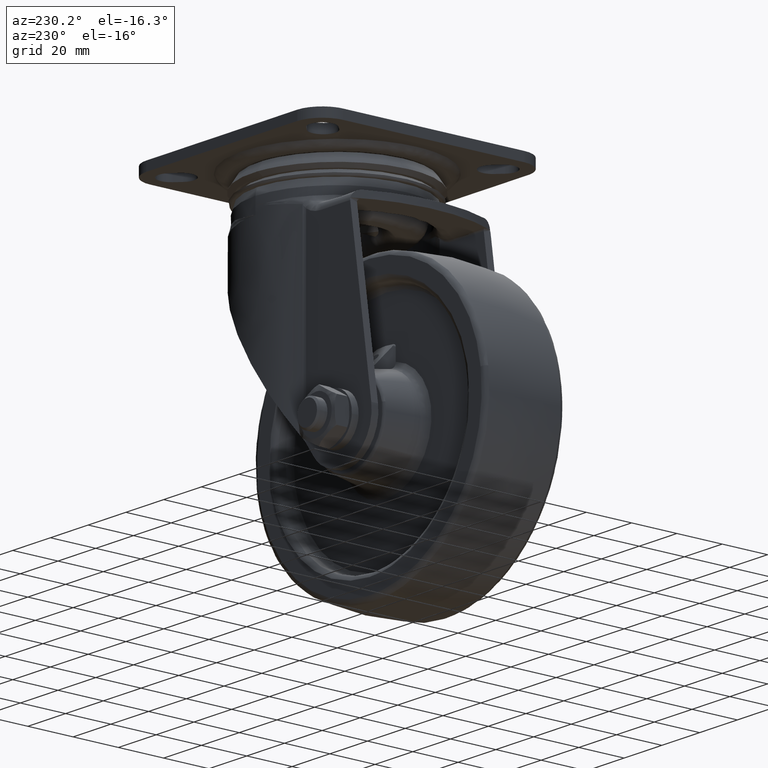
[diagram: clean part render]
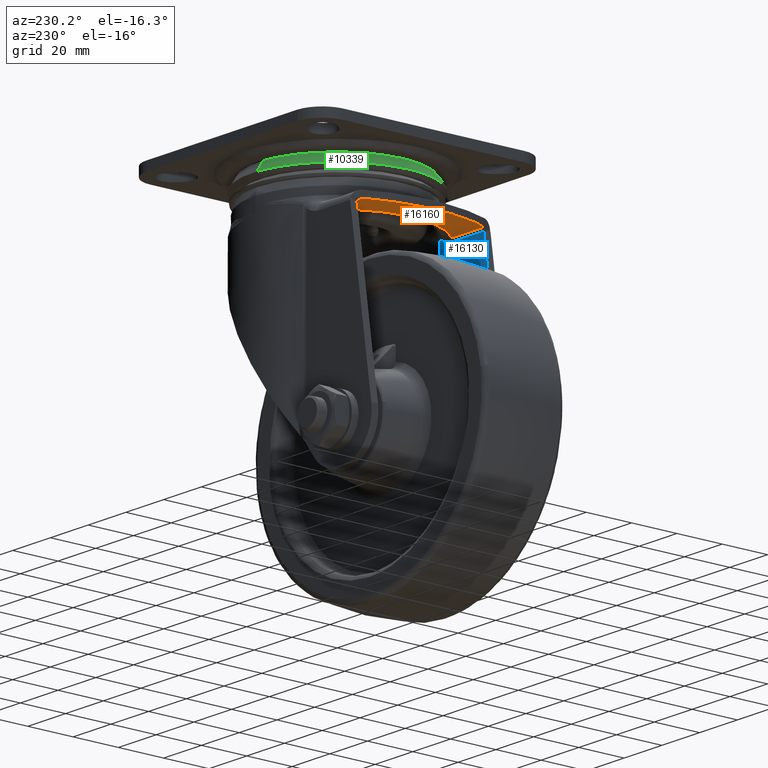
[diagram: same view with three faces highlighted in distinct colors, each labeled with its STEP entity id]
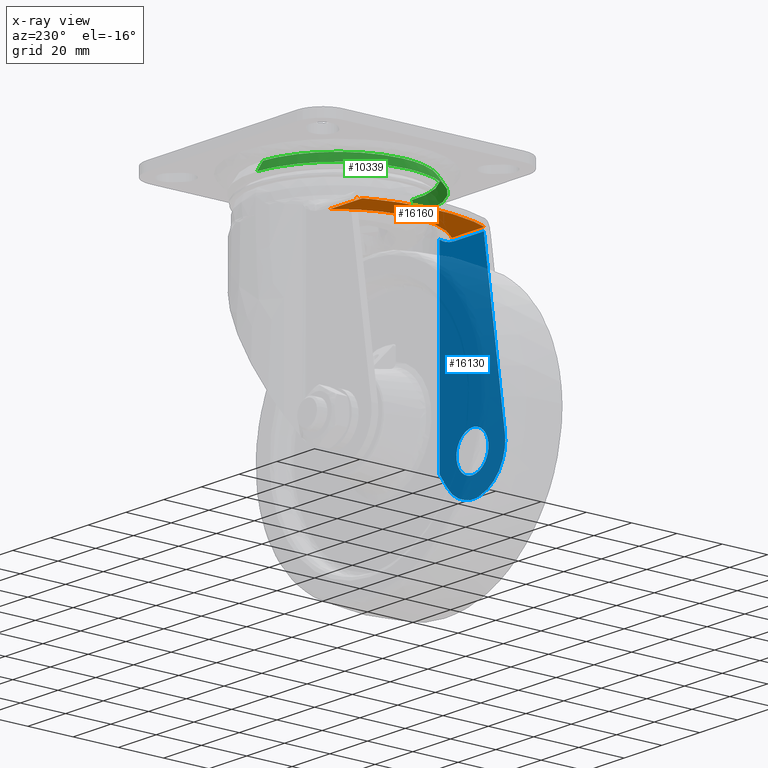
[diagram: x-ray of the same camera — body ghosted, the three highlighted faces saturated]
A machine part, auxiliary view with three faces highlighted in distinct colors.
The next image is the same camera in x-ray (body ghosted, the three faces saturated) — at least one of them is partly hidden behind the body in this view.
Their STEP definitions:

[orange] entity #16160 — the highlighted face is a freeform B-spline surface patch.
#13506=CARTESIAN_POINT('',(-43.937859560606903,30.872983346207349,-28.099989999999998));
#13507=VERTEX_POINT('',#13506);
#13537=CARTESIAN_POINT('',(-43.937859560606903,-30.872983346207349,-28.099989999999998));
#13538=VERTEX_POINT('',#13537);
#13539=CARTESIAN_POINT('',(-43.937859560606910,-30.872983346207381,-28.099989999999998));
#13540=CARTESIAN_POINT('',(-59.194746175725207,-1.734723E-014,-28.099989999999995));
#13541=CARTESIAN_POINT('',(-43.937859560606917,30.872983346207359,-28.099989999999998));
#13549=(BOUNDED_CURVE()B_SPLINE_CURVE(2,(#13539,#13540,#13541),.UNSPECIFIED.,.F.,.U.)CURVE()GEOMETRIC_REPRESENTATION_ITEM()QUASI_UNIFORM_CURVE()RATIONAL_B_SPLINE_CURVE((1.0,0.896503640371240,1.0))REPRESENTATION_ITEM(''));
#13550=EDGE_CURVE('',#13538,#13507,#13549,.T.);
#14224=CARTESIAN_POINT('',(-45.425332899450801,27.0,-28.099989999999998));
#14225=VERTEX_POINT('',#14224);
#14266=CARTESIAN_POINT('',(-28.350002761904658,27.0,-28.099989999999998));
#14267=VERTEX_POINT('',#14266);
#14281=CARTESIAN_POINT('',(-45.425332899450801,27.0,-28.099989999999998));
#14282=CARTESIAN_POINT('',(-28.350002761904658,27.0,-28.099989999999998));
#14283=QUASI_UNIFORM_CURVE('',1,(#14281,#14282),.UNSPECIFIED.,.F.,.U.);
#14284=EDGE_CURVE('',#14225,#14267,#14283,.T.);
#14303=CARTESIAN_POINT('',(-45.425332899450801,-27.0,-28.099989999999998));
#14304=VERTEX_POINT('',#14303);
#14340=CARTESIAN_POINT('',(-28.350002761904658,-27.0,-28.099989999999998));
#14341=VERTEX_POINT('',#14340);
#14342=CARTESIAN_POINT('',(-28.350002761904658,-27.0,-28.099989999999998));
#14343=CARTESIAN_POINT('',(-45.425332899450801,-27.0,-28.099989999999998));
#14344=QUASI_UNIFORM_CURVE('',1,(#14342,#14343),.UNSPECIFIED.,.F.,.U.);
#14345=EDGE_CURVE('',#14341,#14304,#14344,.T.);
#14763=CARTESIAN_POINT('',(-43.924161109737547,-30.872983346207349,-28.099989999999998));
#14764=VERTEX_POINT('',#14763);
#14765=CARTESIAN_POINT('',(-43.924161109737547,-30.872983346207349,-28.099989999999998));
#14766=CARTESIAN_POINT('',(-43.937859560606903,-30.872983346207349,-28.099989999999998));
#14767=QUASI_UNIFORM_CURVE('',1,(#14765,#14766),.UNSPECIFIED.,.F.,.U.);
#14768=EDGE_CURVE('',#14764,#13538,#14767,.T.);
#15109=CARTESIAN_POINT('',(-43.924161109737547,30.872983346207349,-28.099989999999998));
#15110=VERTEX_POINT('',#15109);
#15120=CARTESIAN_POINT('',(-43.937859560606903,30.872983346207349,-28.099989999999998));
#15121=CARTESIAN_POINT('',(-43.924161109737547,30.872983346207349,-28.099989999999998));
#15122=QUASI_UNIFORM_CURVE('',1,(#15120,#15121),.UNSPECIFIED.,.F.,.U.);
#15123=EDGE_CURVE('',#13507,#15110,#15122,.T.);
#15379=CARTESIAN_POINT('',(-44.674747004594153,-28.936491673103681,-28.099989999999998));
#15380=VERTEX_POINT('',#15379);
#15381=CARTESIAN_POINT('',(-44.674747004594138,-28.936491673103681,-28.099989999999998));
#15382=CARTESIAN_POINT('',(-44.424551706308577,-29.581988897471561,-28.099989999999998));
#15383=CARTESIAN_POINT('',(-44.174356408023023,-30.227486121839441,-28.099989999999998));
#15384=CARTESIAN_POINT('',(-43.924161109737483,-30.872983346207320,-28.099989999999998));
#15385=B_SPLINE_CURVE_WITH_KNOTS('',3,(#15381,#15382,#15383,#15384),.UNSPECIFIED.,.F.,.U.,(4,4),(0.770721297011520,0.985887038467480),.UNSPECIFIED.);
#15386=EDGE_CURVE('',#15380,#14764,#15385,.T.);
#15388=CARTESIAN_POINT('',(-45.425332899450801,-27.0,-28.099989999999998));
#15389=CARTESIAN_POINT('',(-44.674747004594153,-28.936491673103681,-28.099989999999998));
#15390=QUASI_UNIFORM_CURVE('',1,(#15388,#15389),.UNSPECIFIED.,.F.,.U.);
#15391=EDGE_CURVE('',#14304,#15380,#15390,.T.);
#15438=CARTESIAN_POINT('',(-44.674747004594131,28.936491673103671,-28.099989999999998));
#15439=VERTEX_POINT('',#15438);
#15440=CARTESIAN_POINT('',(-44.674747004594131,28.936491673103671,-28.099989999999998));
#15441=CARTESIAN_POINT('',(-45.425332899450801,27.0,-28.099989999999998));
#15442=QUASI_UNIFORM_CURVE('',1,(#15440,#15441),.UNSPECIFIED.,.F.,.U.);
#15443=EDGE_CURVE('',#15439,#14225,#15442,.T.);
#15445=CARTESIAN_POINT('',(-43.924161109737483,30.872983346207320,-28.099989999999998));
#15446=CARTESIAN_POINT('',(-44.174356408023023,30.227486121839441,-28.099989999999998));
#15447=CARTESIAN_POINT('',(-44.424551706308577,29.581988897471550,-28.099989999999998));
#15448=CARTESIAN_POINT('',(-44.674747004594153,28.936491673103671,-28.099989999999998));
#15449=B_SPLINE_CURVE_WITH_KNOTS('',3,(#15445,#15446,#15447,#15448),.UNSPECIFIED.,.F.,.U.,(4,4),(0.014112961532520,0.229278702988481),.UNSPECIFIED.);
#15450=EDGE_CURVE('',#15110,#15439,#15449,.T.);
#16131=CARTESIAN_POINT('',(-27.211142844152619,-33.957194262817808,-28.099989999999998));
#16132=CARTESIAN_POINT('',(-52.288862529295614,-33.957194262817808,-28.099989999999998));
#16133=CARTESIAN_POINT('',(-27.211142844152619,33.957195918973703,-28.099989999999998));
#16134=CARTESIAN_POINT('',(-52.288862529295614,33.957195918973703,-28.099989999999998));
#16135=B_SPLINE_SURFACE_WITH_KNOTS('',1,1,((#16131,#16133),(#16132,#16134)),.UNSPECIFIED.,.F.,.F.,.U.,(2,2),(2,2),(0.0,25.077719685142991),(0.0,67.914390181791504),.UNSPECIFIED.);
#16136=CARTESIAN_POINT('',(-28.350002761904609,-26.999999999999950,-28.099989999999998));
#16137=CARTESIAN_POINT('',(-54.064285971061551,-1.387779E-014,-28.099990000000012));
#16138=CARTESIAN_POINT('',(-28.350002761904619,26.999999999999940,-28.099989999999998));
#16146=(BOUNDED_CURVE()B_SPLINE_CURVE(2,(#16136,#16137,#16138),.UNSPECIFIED.,.F.,.U.)CURVE()GEOMETRIC_REPRESENTATION_ITEM()QUASI_UNIFORM_CURVE()RATIONAL_B_SPLINE_CURVE((1.0,0.724137964588218,1.0))REPRESENTATION_ITEM(''));
#16147=EDGE_CURVE('',#14341,#14267,#16146,.T.);
#16148=ORIENTED_EDGE('',*,*,#16147,.F.);
#16149=ORIENTED_EDGE('',*,*,#14345,.T.);
#16150=ORIENTED_EDGE('',*,*,#15391,.T.);
#16151=ORIENTED_EDGE('',*,*,#15386,.T.);
#16152=ORIENTED_EDGE('',*,*,#14768,.T.);
#16153=ORIENTED_EDGE('',*,*,#13550,.T.);
#16154=ORIENTED_EDGE('',*,*,#15123,.T.);
#16155=ORIENTED_EDGE('',*,*,#15450,.T.);
#16156=ORIENTED_EDGE('',*,*,#15443,.T.);
#16157=ORIENTED_EDGE('',*,*,#14284,.T.);
#16158=EDGE_LOOP('',(#16148,#16149,#16150,#16151,#16152,#16153,#16154,#16155,#16156,#16157));
#16159=FACE_OUTER_BOUND('',#16158,.T.);
#16160=ADVANCED_FACE('',(#16159),#16135,.T.);

[blue] entity #16130 — the highlighted face is a freeform B-spline surface patch.
#11165=CARTESIAN_POINT('',(-38.000025000000001,-28.0,-96.999908000000005));
#11166=VERTEX_POINT('',#11165);
#11167=CARTESIAN_POINT('',(-29.526181805109569,-28.0,-104.833048076705690));
#11168=VERTEX_POINT('',#11167);
#11169=CARTESIAN_POINT('',(-38.000025000000001,-28.0,-96.999908000000005));
#11170=CARTESIAN_POINT('',(-30.142663299397704,-28.0,-96.999907999999991));
#11171=CARTESIAN_POINT('',(-29.526181805109573,-28.0,-104.833048076705610));
#11179=(BOUNDED_CURVE()B_SPLINE_CURVE(2,(#11169,#11170,#11171),.UNSPECIFIED.,.F.,.U.)B_SPLINE_CURVE_WITH_KNOTS((3,3),(0.0,0.236331300622869),.UNSPECIFIED.)CURVE()GEOMETRIC_REPRESENTATION_ITEM()RATIONAL_B_SPLINE_CURVE((1.0,0.723120658616793,0.969723356151159))REPRESENTATION_ITEM(''));
#11180=EDGE_CURVE('',#11166,#11168,#11179,.T.);
#11221=CARTESIAN_POINT('',(-46.473868194890429,-28.0,-106.166859923294400));
#11222=VERTEX_POINT('',#11221);
#11228=CARTESIAN_POINT('',(-46.473868194890436,-28.000000000000004,-106.166859923294400));
#11229=CARTESIAN_POINT('',(-46.500071000000005,-28.000000000000007,-105.833921717155950));
#11230=CARTESIAN_POINT('',(-46.500071000000013,-28.0,-105.499954000000000));
#11231=CARTESIAN_POINT('',(-46.500071000000005,-27.999999999999996,-96.999907999999991));
#11232=CARTESIAN_POINT('',(-38.000025000000001,-28.0,-96.999908000000005));
#11240=(BOUNDED_CURVE()B_SPLINE_CURVE(2,(#11228,#11229,#11230,#11231,#11232),.UNSPECIFIED.,.F.,.U.)B_SPLINE_CURVE_WITH_KNOTS((3,2,3),(0.736331300622869,0.750000000000000,1.0),.UNSPECIFIED.)CURVE()GEOMETRIC_REPRESENTATION_ITEM()RATIONAL_B_SPLINE_CURVE((0.969723356151159,0.983986122569754,1.0,0.707106781186548,1.0))REPRESENTATION_ITEM(''));
#11241=EDGE_CURVE('',#11222,#11166,#11240,.T.);
#11264=CARTESIAN_POINT('',(-38.000025000000001,-28.0,-114.0));
#11265=VERTEX_POINT('',#11264);
#11266=CARTESIAN_POINT('',(-29.526181805109566,-28.0,-104.833048076705680));
#11267=CARTESIAN_POINT('',(-29.499978999999996,-27.999999999999996,-105.165986282844100));
#11268=CARTESIAN_POINT('',(-29.499979000000000,-28.0,-105.499954000000000));
#11269=CARTESIAN_POINT('',(-29.499979000000000,-27.999999999999996,-114.000000000000010));
#11270=CARTESIAN_POINT('',(-38.000025000000001,-28.0,-114.0));
#11278=(BOUNDED_CURVE()B_SPLINE_CURVE(2,(#11266,#11267,#11268,#11269,#11270),.UNSPECIFIED.,.F.,.U.)B_SPLINE_CURVE_WITH_KNOTS((3,2,3),(0.236331300622869,0.250000000000000,0.500000000000000),.UNSPECIFIED.)CURVE()GEOMETRIC_REPRESENTATION_ITEM()RATIONAL_B_SPLINE_CURVE((0.969723356151160,0.983986122569755,1.0,0.707106781186548,1.0))REPRESENTATION_ITEM(''));
#11279=EDGE_CURVE('',#11168,#11265,#11278,.T.);
#11281=CARTESIAN_POINT('',(-38.000025000000001,-28.0,-114.0));
#11282=CARTESIAN_POINT('',(-45.857386700602298,-28.000000000000004,-113.999999999999990));
#11283=CARTESIAN_POINT('',(-46.473868194890436,-28.000000000000004,-106.166859923294400));
#11291=(BOUNDED_CURVE()B_SPLINE_CURVE(2,(#11281,#11282,#11283),.UNSPECIFIED.,.F.,.U.)B_SPLINE_CURVE_WITH_KNOTS((3,3),(0.500000000000000,0.736331300622869),.UNSPECIFIED.)CURVE()GEOMETRIC_REPRESENTATION_ITEM()RATIONAL_B_SPLINE_CURVE((1.0,0.723120658616793,0.969723356151159))REPRESENTATION_ITEM(''));
#11292=EDGE_CURVE('',#11265,#11222,#11291,.T.);
#14305=CARTESIAN_POINT('',(-44.037732010027050,-28.0,-29.099989999999998));
#14306=VERTEX_POINT('',#14305);
#14347=CARTESIAN_POINT('',(-28.350002761904602,-28.0,-29.099989999999998));
#14348=VERTEX_POINT('',#14347);
#14362=CARTESIAN_POINT('',(-44.037732010027050,-28.0,-29.099989999999998));
#14363=CARTESIAN_POINT('',(-28.350002761904602,-28.0,-29.099989999999998));
#14364=QUASI_UNIFORM_CURVE('',1,(#14362,#14363),.UNSPECIFIED.,.F.,.U.);
#14365=EDGE_CURVE('',#14306,#14348,#14364,.T.);
#15142=CARTESIAN_POINT('',(-20.651122311165452,-28.0,-26.832532224560051));
#15143=VERTEX_POINT('',#15142);
#15144=CARTESIAN_POINT('',(-20.651122311165452,-28.0,-109.900712536361400));
#15145=VERTEX_POINT('',#15144);
#15146=CARTESIAN_POINT('',(-20.651122311165452,-28.0,-26.832532224560051));
#15147=CARTESIAN_POINT('',(-20.651122311165452,-28.0,-109.900712536361400));
#15148=QUASI_UNIFORM_CURVE('',1,(#15146,#15147),.UNSPECIFIED.,.F.,.U.);
#15149=EDGE_CURVE('',#15143,#15145,#15148,.T.);
#15362=CARTESIAN_POINT('',(-44.049000491639447,-28.0,-29.249689647784852));
#15363=VERTEX_POINT('',#15362);
#15394=CARTESIAN_POINT('',(-44.049000491639447,-28.0,-29.249689647784852));
#15395=CARTESIAN_POINT('',(-44.037732010027042,-28.000000000000021,-29.175263935370804));
#15396=CARTESIAN_POINT('',(-44.037732010027042,-28.000000000000007,-29.099989999999902));
#15404=(BOUNDED_CURVE()B_SPLINE_CURVE(2,(#15394,#15395,#15396),.UNSPECIFIED.,.F.,.U.)B_SPLINE_CURVE_WITH_KNOTS((3,3),(0.904033985763428,1.0),.UNSPECIFIED.)CURVE()GEOMETRIC_REPRESENTATION_ITEM()RATIONAL_B_SPLINE_CURVE((1.0,0.966607225217958,0.939623593436180))REPRESENTATION_ITEM(''));
#15405=EDGE_CURVE('',#15363,#14306,#15404,.T.);
#15632=CARTESIAN_POINT('',(-24.576089803991849,-28.0,-115.394420725650800));
#15633=VERTEX_POINT('',#15632);
#15639=CARTESIAN_POINT('',(-24.576089803991849,-28.0,-115.394420725650800));
#15640=CARTESIAN_POINT('',(-20.651122311165452,-28.0,-109.900712536361400));
#15641=QUASI_UNIFORM_CURVE('',1,(#15639,#15640),.UNSPECIFIED.,.F.,.U.);
#15642=EDGE_CURVE('',#15633,#15145,#15641,.T.);
#15770=CARTESIAN_POINT('',(-55.203097829770407,-28.0,-102.919920410196990));
#15771=VERTEX_POINT('',#15770);
#15772=CARTESIAN_POINT('',(-44.049000491639447,-28.0,-29.249689647784852));
#15773=CARTESIAN_POINT('',(-55.203097829770407,-28.0,-102.919920410196990));
#15774=QUASI_UNIFORM_CURVE('',1,(#15772,#15773),.UNSPECIFIED.,.F.,.U.);
#15775=EDGE_CURVE('',#15363,#15771,#15774,.T.);
#15852=CARTESIAN_POINT('',(-24.576089803991849,-28.0,-115.394420725650800));
#15853=CARTESIAN_POINT('',(-25.092152768097591,-28.000000000000050,-116.116802953876400));
#15854=CARTESIAN_POINT('',(-26.428727773632350,-27.999999999999961,-117.707848314168300));
#15855=CARTESIAN_POINT('',(-29.046331134531592,-28.000000000000028,-119.865387646836890));
#15856=CARTESIAN_POINT('',(-32.127573605800052,-27.999999999999929,-121.429907500073300));
#15857=CARTESIAN_POINT('',(-35.217620488090127,-28.000000000000099,-122.289522844591700));
#15858=CARTESIAN_POINT('',(-37.875888082191892,-27.999999999999812,-122.567536869993010));
#15859=CARTESIAN_POINT('',(-40.957443581155232,-28.000000000000501,-122.422070683792200));
#15860=CARTESIAN_POINT('',(-43.856017551404022,-27.999999999998892,-121.727124249103300));
#15861=CARTESIAN_POINT('',(-46.662831319044237,-28.000000000000419,-120.444375785086510));
#15862=CARTESIAN_POINT('',(-49.046503582411418,-27.999999999999751,-118.882639953112100));
#15863=CARTESIAN_POINT('',(-51.379886456655171,-28.000000000000131,-116.675402789986800));
#15864=CARTESIAN_POINT('',(-53.253367425995073,-27.999999999999940,-113.991419177163290));
#15865=CARTESIAN_POINT('',(-54.540869069387902,-28.000000000000121,-111.118787772970290));
#15866=CARTESIAN_POINT('',(-55.229087322637909,-27.999999999999599,-108.412078151330800));
#15867=CARTESIAN_POINT('',(-55.471571042329643,-28.000000000000860,-105.633347392780190));
#15868=CARTESIAN_POINT('',(-55.347699112277930,-27.999999999999240,-103.855820816927600));
#15869=CARTESIAN_POINT('',(-55.203097829770407,-28.0,-102.919920410196990));
#15870=B_SPLINE_CURVE_WITH_KNOTS('',3,(#15852,#15853,#15854,#15855,#15856,#15857,#15858,#15859,#15860,#15861,#15862,#15863,#15864,#15865,#15866,#15867,#15868,#15869),.UNSPECIFIED.,.F.,.U.,(4,1,1,1,1,1,1,1,1,1,1,1,1,1,1,4),(0.000000301373070,2.663369976100476,6.214714441196769,10.121201473424509,12.962251321135099,15.803308274326771,18.111658224509359,22.195735742561379,24.681499444939821,27.344931114122030,30.718736037203652,34.270042026271128,37.111083867621893,40.129700344849823,42.615620538791923,45.456633427242927),.UNSPECIFIED.);
#15871=EDGE_CURVE('',#15633,#15771,#15870,.T.);
#16090=CARTESIAN_POINT('',(-57.132415286558782,-28.0,-127.281412844888910));
#16091=CARTESIAN_POINT('',(-57.132415286558782,-28.0,-22.053805527132450));
#16092=CARTESIAN_POINT('',(-18.915571575095331,-28.0,-127.281412844888910));
#16093=CARTESIAN_POINT('',(-18.915571575095331,-28.0,-22.053805527132450));
#16094=B_SPLINE_SURFACE_WITH_KNOTS('',1,1,((#16090,#16092),(#16091,#16093)),.UNSPECIFIED.,.F.,.F.,.U.,(2,2),(2,2),(0.0,105.227607317756490),(0.0,38.216843711463447),.UNSPECIFIED.);
#16095=ORIENTED_EDGE('',*,*,#14365,.T.);
#16096=CARTESIAN_POINT('',(-28.350002761904602,-28.0,-29.099989999999998));
#16097=CARTESIAN_POINT('',(-28.008246133352539,-28.0,-29.099990000000009));
#16098=CARTESIAN_POINT('',(-27.668733436726932,-28.0,-29.086904766507079));
#16099=CARTESIAN_POINT('',(-26.993868202669422,-28.000000000000011,-29.036474804936990));
#16100=CARTESIAN_POINT('',(-26.658516641540398,-28.0,-28.999124383660700));
#16101=CARTESIAN_POINT('',(-25.658421796969009,-28.0,-28.852318998477450));
#16102=CARTESIAN_POINT('',(-24.999578124164341,-28.000000000000011,-28.708461126977159));
#16103=CARTESIAN_POINT('',(-24.185846022168970,-28.0,-28.471360061510200));
#16104=CARTESIAN_POINT('',(-24.023595596693799,-28.0,-28.421047510501442));
#16105=CARTESIAN_POINT('',(-23.700106948663262,-28.000000000000011,-28.314519862425360));
#16106=CARTESIAN_POINT('',(-23.538700812656160,-28.0,-28.258233880667220));
#16107=CARTESIAN_POINT('',(-23.059149574640401,-28.0,-28.081453108572560));
#16108=CARTESIAN_POINT('',(-22.744731710701700,-28.0,-27.952788528291851));
#16109=CARTESIAN_POINT('',(-22.126789855239249,-28.0,-27.673166807089000));
#16110=CARTESIAN_POINT('',(-21.823259925804130,-28.0,-27.522221817148981));
#16111=CARTESIAN_POINT('',(-21.227962211232999,-28.0,-27.196262497637122));
#16112=CARTESIAN_POINT('',(-20.936181292825331,-28.0,-27.021275043196901));
#16113=CARTESIAN_POINT('',(-20.651122311165452,-28.0,-26.832532224560101));
#16114=B_SPLINE_CURVE_WITH_KNOTS('',3,(#16096,#16097,#16098,#16099,#16100,#16101,#16102,#16103,#16104,#16105,#16106,#16107,#16108,#16109,#16110,#16111,#16112,#16113),.UNSPECIFIED.,.F.,.U.,(4,2,2,2,2,2,2,2,4),(0.0,0.125000000000000,0.249999999999999,0.500000000000000,0.562500000000000,0.625000000000000,0.750000000000000,0.875000000000000,1.0),.UNSPECIFIED.);
#16115=EDGE_CURVE('',#14348,#15143,#16114,.T.);
#16116=ORIENTED_EDGE('',*,*,#16115,.T.);
#16117=ORIENTED_EDGE('',*,*,#15149,.T.);
#16118=ORIENTED_EDGE('',*,*,#15642,.F.);
#16119=ORIENTED_EDGE('',*,*,#15871,.T.);
#16120=ORIENTED_EDGE('',*,*,#15775,.F.);
#16121=ORIENTED_EDGE('',*,*,#15405,.T.);
#16122=EDGE_LOOP('',(#16095,#16116,#16117,#16118,#16119,#16120,#16121));
#16123=FACE_OUTER_BOUND('',#16122,.T.);
#16124=ORIENTED_EDGE('',*,*,#11292,.F.);
#16125=ORIENTED_EDGE('',*,*,#11279,.F.);
#16126=ORIENTED_EDGE('',*,*,#11180,.F.);
#16127=ORIENTED_EDGE('',*,*,#11241,.F.);
#16128=EDGE_LOOP('',(#16124,#16125,#16126,#16127));
#16129=FACE_BOUND('',#16128,.T.);
#16130=ADVANCED_FACE('',(#16123,#16129),#16094,.T.);

[green] entity #10339 — the highlighted face is a freeform B-spline surface patch.
#10082=CARTESIAN_POINT('',(-37.500026827682959,0.0,-10.850005379237640));
#10083=VERTEX_POINT('',#10082);
#10084=CARTESIAN_POINT('',(-2.942218194718024,37.384426759989474,-10.850005379254920));
#10085=VERTEX_POINT('',#10084);
#10086=CARTESIAN_POINT('',(-37.500026827682959,0.0,-10.850005379237640));
#10087=CARTESIAN_POINT('',(-37.500026827683463,34.664668236403244,-10.850005379246111));
#10088=CARTESIAN_POINT('',(-2.942218194718024,37.384426759989466,-10.850005379254929));
#10096=(BOUNDED_CURVE()B_SPLINE_CURVE(2,(#10086,#10087,#10088),.UNSPECIFIED.,.F.,.U.)B_SPLINE_CURVE_WITH_KNOTS((3,3),(0.0,0.236331300632551),.UNSPECIFIED.)CURVE()GEOMETRIC_REPRESENTATION_ITEM()RATIONAL_B_SPLINE_CURVE((1.0,0.723120658605450,0.969723356171365))REPRESENTATION_ITEM(''));
#10097=EDGE_CURVE('',#10083,#10085,#10096,.T.);
#10113=CARTESIAN_POINT('',(2.289321870601039,-37.430081718476053,-10.850005379280260));
#10114=VERTEX_POINT('',#10113);
#10128=CARTESIAN_POINT('',(2.289321870601040,-37.430081718476046,-10.850005379280260));
#10129=CARTESIAN_POINT('',(1.145729443484621,-37.500026827710052,-10.850005379279656));
#10130=CARTESIAN_POINT('',(1.632768E-012,-37.500026827709632,-10.850005379279001));
#10131=CARTESIAN_POINT('',(-37.500026827682170,-37.500026827695891,-10.850005379257688));
#10132=CARTESIAN_POINT('',(-37.500026827682959,0.0,-10.850005379237640));
#10140=(BOUNDED_CURVE()B_SPLINE_CURVE(2,(#10128,#10129,#10130,#10131,#10132),.UNSPECIFIED.,.F.,.U.)B_SPLINE_CURVE_WITH_KNOTS((3,2,3),(0.739332962240810,0.750000000000000,1.0),.UNSPECIFIED.)CURVE()GEOMETRIC_REPRESENTATION_ITEM()RATIONAL_B_SPLINE_CURVE((0.976072041670718,0.987502787902024,1.0,0.707106781186548,1.0))REPRESENTATION_ITEM(''));
#10141=EDGE_CURVE('',#10114,#10083,#10140,.T.);
#10164=CARTESIAN_POINT('',(-2.289321870601039,37.430081718476053,-10.850005379280260));
#10165=VERTEX_POINT('',#10164);
#10166=CARTESIAN_POINT('',(-2.942218194718024,37.384426759989466,-10.850005379254929));
#10167=CARTESIAN_POINT('',(-2.615969245052784,37.410103109182693,-10.850005379267589));
#10168=CARTESIAN_POINT('',(-2.289321870601040,37.430081718476046,-10.850005379280262));
#10176=(BOUNDED_CURVE()B_SPLINE_CURVE(2,(#10166,#10167,#10168),.UNSPECIFIED.,.F.,.U.)B_SPLINE_CURVE_WITH_KNOTS((3,3),(0.236331300632551,0.239332962240810),.UNSPECIFIED.)CURVE()GEOMETRIC_REPRESENTATION_ITEM()RATIONAL_B_SPLINE_CURVE((0.969723356171365,0.972855475563910,0.976072041670718))REPRESENTATION_ITEM(''));
#10177=EDGE_CURVE('',#10085,#10165,#10176,.T.);
#10235=CARTESIAN_POINT('',(-2.117561775475356,34.621828989528460,-6.500000000012449));
#10236=VERTEX_POINT('',#10235);
#10237=CARTESIAN_POINT('',(-2.117561775475356,34.621828989528460,-6.500000000012449));
#10238=CARTESIAN_POINT('',(-2.289321870601039,37.430081718476053,-10.850005379280260));
#10239=QUASI_UNIFORM_CURVE('',1,(#10237,#10238),.UNSPECIFIED.,.F.,.U.);
#10240=EDGE_CURVE('',#10236,#10165,#10239,.T.);
#10259=CARTESIAN_POINT('',(2.117561775475356,-34.621828989528460,-6.500000000012449));
#10260=VERTEX_POINT('',#10259);
#10274=CARTESIAN_POINT('',(2.117561775475356,-34.621828989528460,-6.500000000012449));
#10275=CARTESIAN_POINT('',(2.289321870601039,-37.430081718476053,-10.850005379280260));
#10276=QUASI_UNIFORM_CURVE('',1,(#10274,#10275),.UNSPECIFIED.,.F.,.U.);
#10277=EDGE_CURVE('',#10260,#10114,#10276,.T.);
#10284=CARTESIAN_POINT('',(2.113267773027676,-34.551622671301438,-6.391249865519058));
#10285=CARTESIAN_POINT('',(-32.438354898273765,-36.664890444329117,-6.391249865519058));
#10286=CARTESIAN_POINT('',(-34.551622671301438,-2.113267773027676,-6.391249865519058));
#10287=CARTESIAN_POINT('',(-36.664890444329117,32.438354898273765,-6.391249865519058));
#10288=CARTESIAN_POINT('',(-2.113267773027676,34.551622671301438,-6.391249865519058));
#10289=CARTESIAN_POINT('',(2.293723222781006,-37.502043194642937,-10.961474267080609));
#10290=CARTESIAN_POINT('',(-35.208319971861933,-39.795766417423941,-10.961474267080607));
#10291=CARTESIAN_POINT('',(-37.502043194642937,-2.293723222781006,-10.961474267080609));
#10292=CARTESIAN_POINT('',(-39.795766417423941,35.208319971861933,-10.961474267080607));
#10293=CARTESIAN_POINT('',(-2.293723222781006,37.502043194642937,-10.961474267080609));
#10301=(BOUNDED_SURFACE()B_SPLINE_SURFACE(2,1,((#10284,#10289),(#10285,#10290),(#10286,#10291),(#10287,#10292),(#10288,#10293)),.UNSPECIFIED.,.F.,.F.,.U.)B_SPLINE_SURFACE_WITH_KNOTS((3,2,3),(2,2),(0.0,62.251531286086973,124.503062572173900),(0.0,5.442839012365611),.UNSPECIFIED.)GEOMETRIC_REPRESENTATION_ITEM()RATIONAL_B_SPLINE_SURFACE(((1.0,1.0),(0.707106781186548,0.707106781186548),(1.0,1.0),(0.707106781186548,0.707106781186548),(1.0,1.0)))REPRESENTATION_ITEM('')SURFACE());
#10302=ORIENTED_EDGE('',*,*,#10097,.F.);
#10303=ORIENTED_EDGE('',*,*,#10141,.F.);
#10304=ORIENTED_EDGE('',*,*,#10277,.F.);
#10305=CARTESIAN_POINT('',(-34.686526353218902,0.0,-6.500000000000000));
#10306=VERTEX_POINT('',#10305);
#10307=CARTESIAN_POINT('',(2.117561775475357,-34.621828989528460,-6.500000000012450));
#10308=CARTESIAN_POINT('',(1.059769229357508,-34.686526353226817,-6.500000000012270));
#10309=CARTESIAN_POINT('',(4.688446E-013,-34.686526353226689,-6.500000000012079));
#10310=CARTESIAN_POINT('',(-34.686526353218667,-34.686526353222682,-6.500000000005857));
#10311=CARTESIAN_POINT('',(-34.686526353218902,0.0,-6.500000000000000));
#10319=(BOUNDED_CURVE()B_SPLINE_CURVE(2,(#10307,#10308,#10309,#10310,#10311),.UNSPECIFIED.,.F.,.U.)B_SPLINE_CURVE_WITH_KNOTS((3,2,3),(0.739332962241602,0.750000000000000,1.0),.UNSPECIFIED.)CURVE()GEOMETRIC_REPRESENTATION_ITEM()RATIONAL_B_SPLINE_CURVE((0.976072041672416,0.987502787902953,1.0,0.707106781186548,1.0))REPRESENTATION_ITEM(''));
#10320=EDGE_CURVE('',#10260,#10306,#10319,.T.);
#10321=ORIENTED_EDGE('',*,*,#10320,.T.);
#10322=CARTESIAN_POINT('',(-34.686526353218902,0.0,-6.500000000000000));
#10323=CARTESIAN_POINT('',(-34.686526353219143,32.629825780291874,-6.500000000006227));
#10324=CARTESIAN_POINT('',(-2.117561775475356,34.621828989528460,-6.500000000012450));
#10332=(BOUNDED_CURVE()B_SPLINE_CURVE(2,(#10322,#10323,#10324),.UNSPECIFIED.,.F.,.U.)B_SPLINE_CURVE_WITH_KNOTS((3,3),(0.0,0.239332962241602),.UNSPECIFIED.)CURVE()GEOMETRIC_REPRESENTATION_ITEM()RATIONAL_B_SPLINE_CURVE((1.0,0.719603993283595,0.976072041672416))REPRESENTATION_ITEM(''));
#10333=EDGE_CURVE('',#10306,#10236,#10332,.T.);
#10334=ORIENTED_EDGE('',*,*,#10333,.T.);
#10335=ORIENTED_EDGE('',*,*,#10240,.T.);
#10336=ORIENTED_EDGE('',*,*,#10177,.F.);
#10337=EDGE_LOOP('',(#10302,#10303,#10304,#10321,#10334,#10335,#10336));
#10338=FACE_OUTER_BOUND('',#10337,.T.);
#10339=ADVANCED_FACE('',(#10338),#10301,.T.);